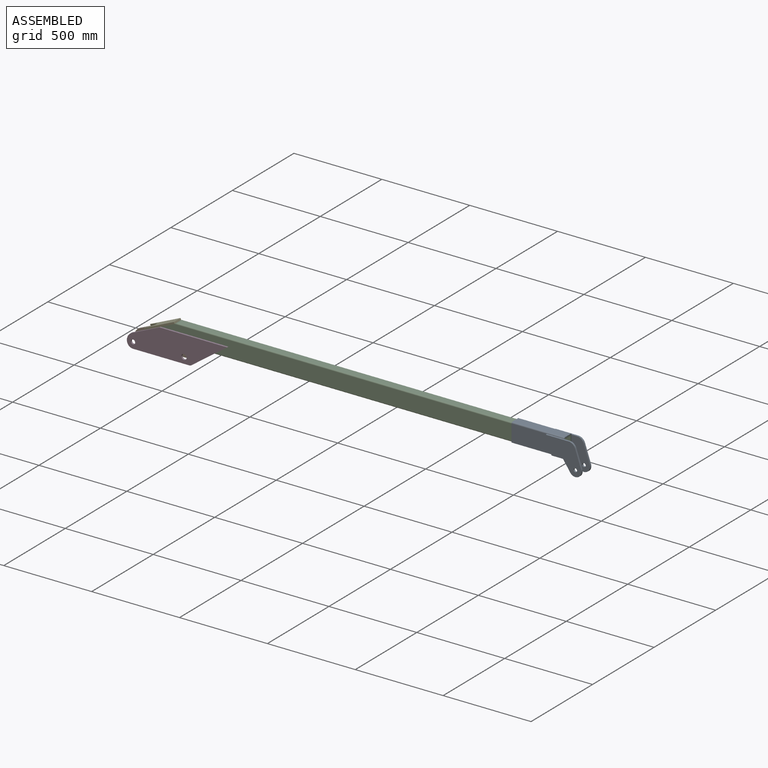
[diagram: assembled view]
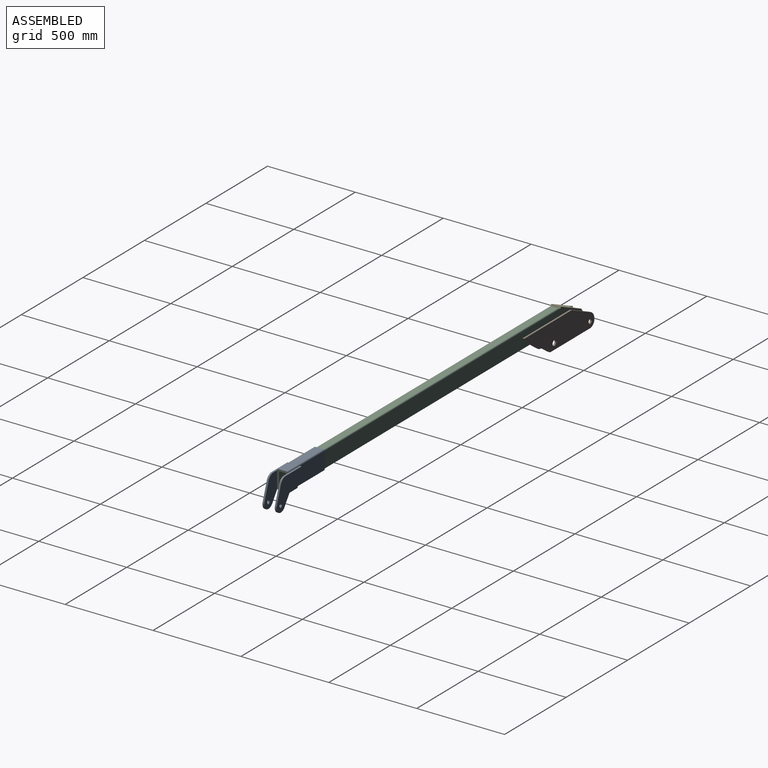
[diagram: assembled view, second angle]
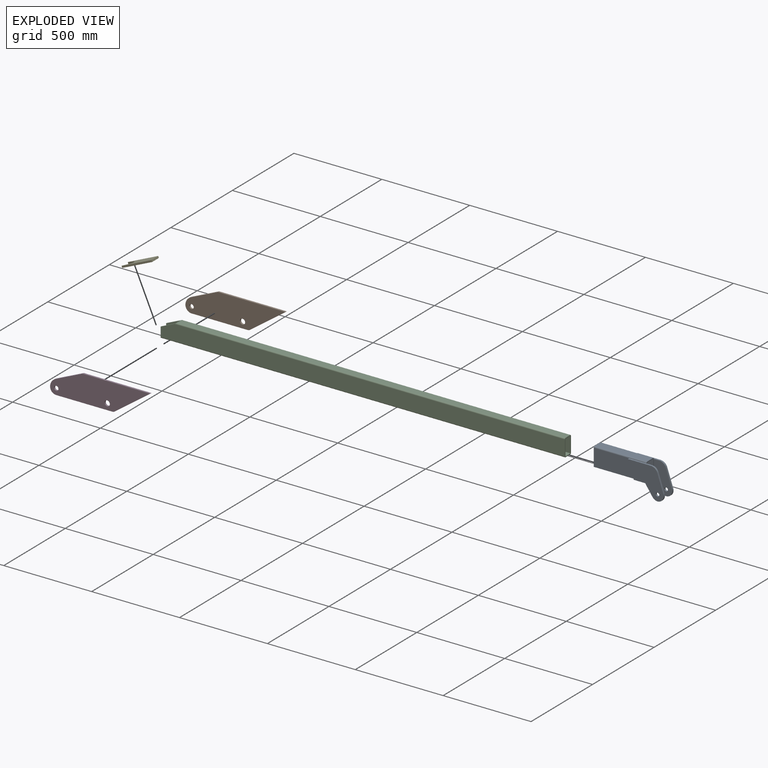
[diagram: exploded view]
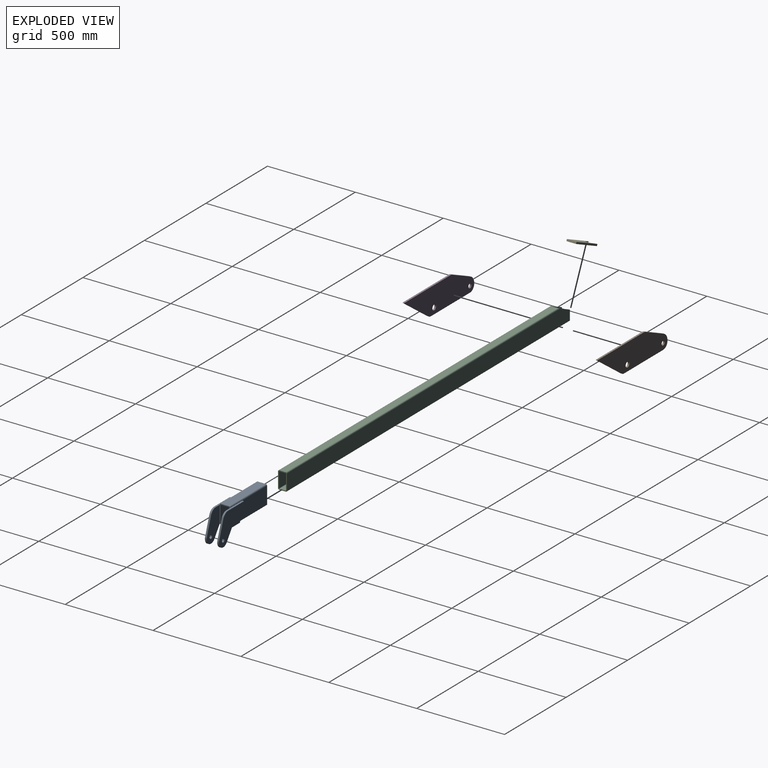
[diagram: exploded view, second angle]
ASSEMBLY  parts=5 mates=3
PART A: 32 faces, bbox 405.2x80x180 mm
  f0: plane 235x98mm, normal (0,1,0), area 21386.4mm2, adj f7,f8,f12,f28
  f1: plane 235x98mm, normal (0,-1,0), area 21386.4mm2, adj f10,f11,f12,f19
  f2: plane 300x98mm, normal (0,1,0), area 29400mm2, adj f3,f11,f12,f13
  f3: cylinder r=2mm len=300mm, axis (1,0,0), area 942.5mm2, adj f2,f4,f12,f13
  f4: plane 300x46mm, normal (0,0,-1), area 13800mm2, adj f3,f5,f12,f13
  f5: cylinder r=2mm len=300mm, axis (1,0,0), area 942.5mm2, adj f4,f6,f12,f13
  f6: plane 300x98mm, normal (0,-1,0), area 29400mm2, adj f5,f7,f12,f13
  f7: plane 300x15mm, normal (0,0,-1), area 2150mm2, adj f0,f6,f12,f13,f23,f28,f30
  f8: cylinder r=7mm len=300mm, axis (1,0,0), area 3298.7mm2, adj f0,f9,f12,f13,f27
  f9: plane 300x46mm, normal (0,0,1), area 13800mm2, adj f8,f10,f12,f13
  f10: cylinder r=7mm len=300mm, axis (1,0,0), area 3298.7mm2, adj f1,f9,f12,f13,f18
  f11: plane 300x15mm, normal (0,0,-1), area 2150mm2, adj f1,f2,f12,f13,f14,f19,f21
  f12: plane 105x60mm, normal (-1,0,0), area 1280.7mm2, adj f0,f1,f2,f3,f4,f5,f6,f7
  f13: plane 105x60mm, normal (1,0,0), area 1280.7mm2, adj f2,f3,f4,f5,f6,f7,f8,f9
  f14: plane 59.92x41.46mm, normal (-0.82,0,-0.57), area 728.6mm2, adj f11,f15,f21,f22
  f15: cylinder r=35mm len=63.78mm, axis (0,1,0), area 1003.1mm2, adj f14,f16,f21,f22
  f16: plane 99.62x34.1mm, normal (0.95,0,0.32), area 1052.9mm2, adj f15,f17,f21,f22
  f17: cylinder r=40mm len=37.84mm, axis (0,1,0), area 496.4mm2, adj f16,f18,f21,f22
  f18: plane 129.96x10mm, normal (0,0,1), area 1299.6mm2, adj f10,f17,f19,f21,f22
  f19: plane 98x33.54mm, normal (-0.95,0,-0.32), area 1035.8mm2, adj f1,f11,f18,f21
  f20: cylinder r=10mm len=20mm, axis (0,1,0), area 628.3mm2, adj f21,f22
  f21: plane 203.78x173mm, normal (0,-1,0), area 20504mm2, adj f11,f14,f15,f16,f17,f18,f19,f20
  f22: plane 173x105.24mm, normal (0,1,0), area 12490.4mm2, adj f13,f14,f15,f16,f17,f18,f20
  f23: plane 59.92x41.46mm, normal (-0.82,0,-0.57), area 728.6mm2, adj f7,f24,f30,f31
  f24: cylinder r=35mm len=63.78mm, axis (0,-1,0), area 1003.1mm2, adj f23,f25,f30,f31
  f25: plane 99.62x34.1mm, normal (0.95,0,0.32), area 1052.9mm2, adj f24,f26,f30,f31
  f26: cylinder r=40mm len=37.84mm, axis (0,-1,0), area 496.4mm2, adj f25,f27,f30,f31
  f27: plane 129.96x10mm, normal (0,0,1), area 1299.6mm2, adj f8,f26,f28,f30,f31
  f28: plane 98x33.54mm, normal (-0.95,0,-0.32), area 1035.8mm2, adj f0,f7,f27,f30
  f29: cylinder r=10mm len=20mm, axis (0,-1,0), area 628.3mm2, adj f30,f31
  f30: plane 203.78x173mm, normal (0,1,0), area 20504mm2, adj f7,f23,f24,f25,f26,f27,f28,f29
  f31: plane 173x105.24mm, normal (0,-1,0), area 12490.4mm2, adj f13,f23,f24,f25,f26,f27,f29
PART B: 11 faces, bbox 569.9x10x150 mm
  f0: plane 384.92x10mm, normal (0,0,1), area 3849.2mm2, adj f1,f7,f9,f10
  f1: plane 155.38x69.34mm, normal (-0.41,0,0.91), area 1701.5mm2, adj f0,f2,f9,f10
  f2: cylinder r=50mm len=45.66mm, axis (0,-1,0), area 575.5mm2, adj f1,f3,f9,f10
  f3: cylinder r=35mm len=35mm, axis (0,-1,0), area 549.8mm2, adj f2,f4,f9,f10
  f4: plane 318.87x10mm, normal (0,0,-1), area 3188.7mm2, adj f3,f5,f9,f10
  f5: cylinder r=25mm len=14.62mm, axis (0,-1,0), area 156.2mm2, adj f4,f7,f9,f10
  f6: cylinder r=12.5mm len=25mm, axis (0,-1,0), area 785.4mm2, adj f9,f10
  f7: plane 201.42x145.28mm, normal (0.58,0,-0.81), area 2483.5mm2, adj f0,f5,f9,f10
  f8: cylinder r=15mm len=30mm, axis (0,-1,0), area 942.5mm2, adj f9,f10
  f9: plane 569.92x150mm, normal (0,1,0), area 60602.7mm2, adj f0,f1,f2,f3,f4,f5,f6,f7
  f10: plane 569.92x150mm, normal (0,-1,0), area 60602.7mm2, adj f0,f1,f2,f3,f4,f5,f6,f7
PART C: 19 faces, bbox 2300x50x100 mm
  f0: plane 59x50mm, normal (-1,0,0), area 775mm2, adj f1,f5,f6,f7,f8,f9,f13,f14
  f1: plane 2300x88mm, normal (0,1,0), area 201027.5mm2, adj f0,f2,f16,f17,f18
  f2: cylinder r=6mm len=2221.57mm, axis (-1,0,0), area 20857.2mm2, adj f1,f3,f17,f18
  f3: plane 2208.13x38mm, normal (0,0,1), area 83908.9mm2, adj f2,f4,f17,f18
  f4: cylinder r=6mm len=2221.57mm, axis (-1,0,0), area 20857.2mm2, adj f3,f5,f17,f18
  f5: plane 2300x88mm, normal (0,-1,0), area 201027.5mm2, adj f0,f4,f6,f17,f18
  f6: cylinder r=6mm len=2300mm, axis (-1,0,0), area 21677mm2, adj f0,f5,f7,f17
  f7: plane 2300x38mm, normal (0,0,-1), area 87400mm2, adj f0,f6,f16,f17
  f8: cylinder r=1mm len=2300mm, axis (-1,0,0), area 3612.8mm2, adj f0,f9,f15,f17
  f9: plane 2300x88mm, normal (0,1,0), area 201027.5mm2, adj f0,f8,f10,f17,f18
  f10: cylinder r=1mm len=2221.57mm, axis (-1,0,0), area 3487.4mm2, adj f9,f11,f17,f18
  f11: plane 2219.33x38mm, normal (0,0,-1), area 84334.6mm2, adj f10,f12,f17,f18
  f12: cylinder r=1mm len=2221.57mm, axis (-1,0,0), area 3487.4mm2, adj f11,f13,f17,f18
  f13: plane 2300x88mm, normal (0,-1,0), area 201027.5mm2, adj f0,f12,f14,f17,f18
  f14: cylinder r=1mm len=2300mm, axis (-1,0,0), area 3612.8mm2, adj f0,f13,f15,f17
  f15: plane 2300x38mm, normal (0,0,1), area 87400mm2, adj f0,f8,f14,f17
  f16: cylinder r=6mm len=2300mm, axis (-1,0,0), area 21677mm2, adj f0,f1,f7,f17
  f17: plane 100x50mm, normal (1,0,0), area 1370mm2, adj f1,f2,f3,f4,f5,f6,f7,f8
  f18: plane 91.87x50mm, normal (-0.41,0,0.91), area 1460mm2, adj f0,f1,f2,f3,f4,f5,f9,f10
PART D: 11 faces, bbox 569.9x10x150 mm
  f0: plane 384.92x10mm, normal (0,0,1), area 3849.2mm2, adj f1,f7,f9,f10
  f1: plane 155.38x69.34mm, normal (-0.41,0,0.91), area 1701.5mm2, adj f0,f2,f9,f10
  f2: cylinder r=50mm len=45.66mm, axis (0,1,0), area 575.5mm2, adj f1,f3,f9,f10
  f3: cylinder r=35mm len=35mm, axis (0,1,0), area 549.8mm2, adj f2,f4,f9,f10
  f4: plane 318.87x10mm, normal (0,0,-1), area 3188.7mm2, adj f3,f5,f9,f10
  f5: cylinder r=25mm len=14.62mm, axis (0,1,0), area 156.2mm2, adj f4,f7,f9,f10
  f6: cylinder r=12.5mm len=25mm, axis (0,1,0), area 785.4mm2, adj f9,f10
  f7: plane 201.42x145.28mm, normal (0.58,0,-0.81), area 2483.5mm2, adj f0,f5,f9,f10
  f8: cylinder r=15mm len=30mm, axis (0,1,0), area 942.5mm2, adj f9,f10
  f9: plane 569.92x150mm, normal (0,-1,0), area 60602.7mm2, adj f0,f1,f2,f3,f4,f5,f6,f7
  f10: plane 569.92x150mm, normal (0,1,0), area 60602.7mm2, adj f0,f1,f2,f3,f4,f5,f6,f7
PART E: 10 faces, bbox 173.7x55x84.8 mm
  f0: plane 55x9.13mm, normal (0.91,0,0.41), area 550mm2, adj f1,f7,f8,f9
  f1: plane 173.7x84.83mm, normal (0,1,0), area 1857.5mm2, adj f0,f2,f8,f9
  f2: plane 9.13x5mm, normal (-0.91,0,-0.41), area 50mm2, adj f1,f3,f8,f9
  f3: plane 43.05x26.52mm, normal (-0.16,-0.98,-0.07), area 433.7mm2, adj f2,f4,f8,f9
  f4: cylinder r=15mm len=29.52mm, axis (0.41,0,-0.91), area 417.4mm2, adj f3,f5,f8,f9
  f5: plane 43.05x26.52mm, normal (-0.16,0.98,-0.07), area 433.7mm2, adj f4,f6,f8,f9
  f6: plane 9.13x5mm, normal (-0.91,0,-0.41), area 50mm2, adj f5,f7,f8,f9
  f7: plane 173.7x84.83mm, normal (0,-1,0), area 1857.5mm2, adj f0,f6,f8,f9
  f8: plane 169.63x75.7mm, normal (-0.41,0,0.91), area 8352.7mm2, adj f0,f1,f2,f3,f4,f5,f6,f7
  f9: plane 169.63x75.7mm, normal (0.41,0,-0.91), area 8352.7mm2, adj f0,f1,f2,f3,f4,f5,f6,f7
PLACE A t=(-679.8,-229.63,-160.08)mm
PLACE B t=(-679.8,-229.63,-160.08)mm
PLACE C t=(-679.8,-229.63,-160.08)mm
PLACE D t=(-679.8,-229.63,-160.08)mm
PLACE E t=(-686.44,-229.63,-163.04)mm
MATE planar B.f10 <-> C.f1  axis (0,-1,0) through (-679.8,-204.63,-151.08)mm
MATE fastened E.f9 <-> C.f18  axis (0.41,0,-0.91) through (-599.13,-229.63,-115.08)mm
MATE cylindrical D.f3 <-> B.f3  axis (0,-1,0) through (-829.8,-264.63,-266.08)mm
